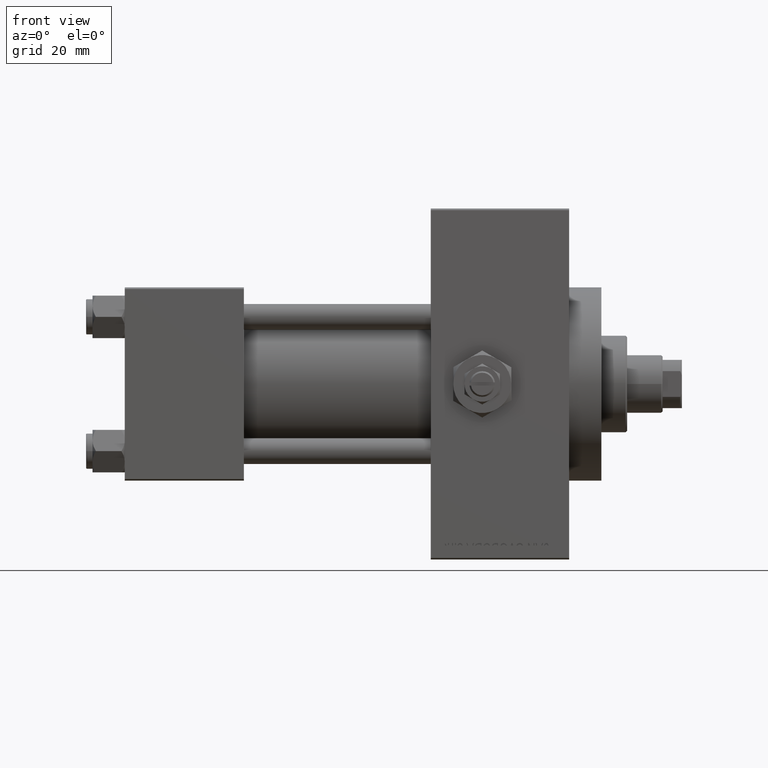
[diagram: clean part render]
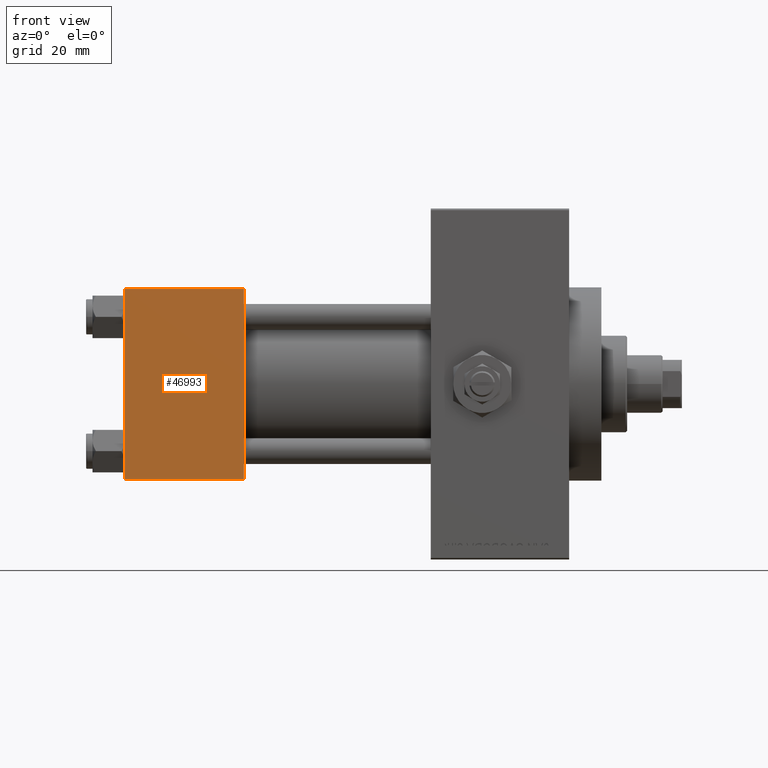
[diagram: same view with one face highlighted and labeled with its STEP entity id]
A machine part, front view. The second image highlights one B-rep face of the part: STEP entity #46993.
In plain terms, the highlighted planar face has unit normal (0, 1, 0).
Its self-contained STEP definition (entity closure, byte-faithful):
#2642 = DIRECTION ( 'NONE',  ( -1.000000000000000000, 0.000000000000000000, 0.000000000000000000 ) ) ;
#3017 = PLANE ( 'NONE',  #11108 ) ;
#3427 = VECTOR ( 'NONE', #14322, 1000.000000000000000 ) ;
#4082 = VECTOR ( 'NONE', #38061, 1000.000000000000000 ) ;
#4910 = VERTEX_POINT ( 'NONE', #16032 ) ;
#5188 = CARTESIAN_POINT ( 'NONE',  ( 37.00000000000000000, -30.00000000000000000, -29.50000000000001776 ) ) ;
#6634 = ORIENTED_EDGE ( 'NONE', *, *, #26444, .T. ) ;
#8603 = ORIENTED_EDGE ( 'NONE', *, *, #24201, .T. ) ;
#9592 = EDGE_LOOP ( 'NONE', ( #6634, #8603, #24474, #30147 ) ) ;
#10696 = CARTESIAN_POINT ( 'NONE',  ( 37.00000000000000000, -30.00000000000000000, 29.99999999999999289 ) ) ;
#11108 = AXIS2_PLACEMENT_3D ( 'NONE', #10696, #18849, #33487 ) ;
#14322 = DIRECTION ( 'NONE',  ( 0.000000000000000000, 0.000000000000000000, -1.000000000000000000 ) ) ;
#15436 = CARTESIAN_POINT ( 'NONE',  ( 37.00000000000000000, -30.00000000000000000, 29.49999999999999289 ) ) ;
#16032 = CARTESIAN_POINT ( 'NONE',  ( 0.000000000000000000, -30.00000000000000000, 29.49999999999999289 ) ) ;
#17372 = VECTOR ( 'NONE', #2642, 1000.000000000000000 ) ;
#18364 = CARTESIAN_POINT ( 'NONE',  ( 0.000000000000000000, -30.00000000000000000, -29.50000000000001776 ) ) ;
#18849 = DIRECTION ( 'NONE',  ( -0.000000000000000000, 1.000000000000000000, 0.000000000000000000 ) ) ;
#19277 = CARTESIAN_POINT ( 'NONE',  ( 37.00000000000000000, -30.00000000000000000, -29.50000000000001776 ) ) ;
#21840 = FACE_OUTER_BOUND ( 'NONE', #9592, .T. ) ;
#22697 = EDGE_CURVE ( 'NONE', #31736, #4910, #40284, .T. ) ;
#23245 = LINE ( 'NONE', #19277, #43551 ) ;
#24201 = EDGE_CURVE ( 'NONE', #27317, #36113, #23245, .T. ) ;
#24474 = ORIENTED_EDGE ( 'NONE', *, *, #33217, .F. ) ;
#25948 = LINE ( 'NONE', #33146, #3427 ) ;
#26444 = EDGE_CURVE ( 'NONE', #4910, #27317, #30385, .T. ) ;
#27317 = VERTEX_POINT ( 'NONE', #18364 ) ;
#30147 = ORIENTED_EDGE ( 'NONE', *, *, #22697, .T. ) ;
#30385 = LINE ( 'NONE', #45487, #4082 ) ;
#31400 = DIRECTION ( 'NONE',  ( 1.000000000000000000, 0.000000000000000000, 0.000000000000000000 ) ) ;
#31736 = VERTEX_POINT ( 'NONE', #15436 ) ;
#33146 = CARTESIAN_POINT ( 'NONE',  ( 37.00000000000000000, -30.00000000000000000, 29.99999999999999289 ) ) ;
#33217 = EDGE_CURVE ( 'NONE', #31736, #36113, #25948, .T. ) ;
#33487 = DIRECTION ( 'NONE',  ( 0.000000000000000000, -0.000000000000000000, 1.000000000000000000 ) ) ;
#36113 = VERTEX_POINT ( 'NONE', #5188 ) ;
#36571 = CARTESIAN_POINT ( 'NONE',  ( 37.00000000000000000, -30.00000000000000000, 29.49999999999999289 ) ) ;
#38061 = DIRECTION ( 'NONE',  ( 0.000000000000000000, 0.000000000000000000, -1.000000000000000000 ) ) ;
#40284 = LINE ( 'NONE', #36571, #17372 ) ;
#43551 = VECTOR ( 'NONE', #31400, 1000.000000000000000 ) ;
#45487 = CARTESIAN_POINT ( 'NONE',  ( 0.000000000000000000, -30.00000000000000000, 29.99999999999999289 ) ) ;
#46993 = ADVANCED_FACE ( 'NONE', ( #21840 ), #3017, .F. ) ;